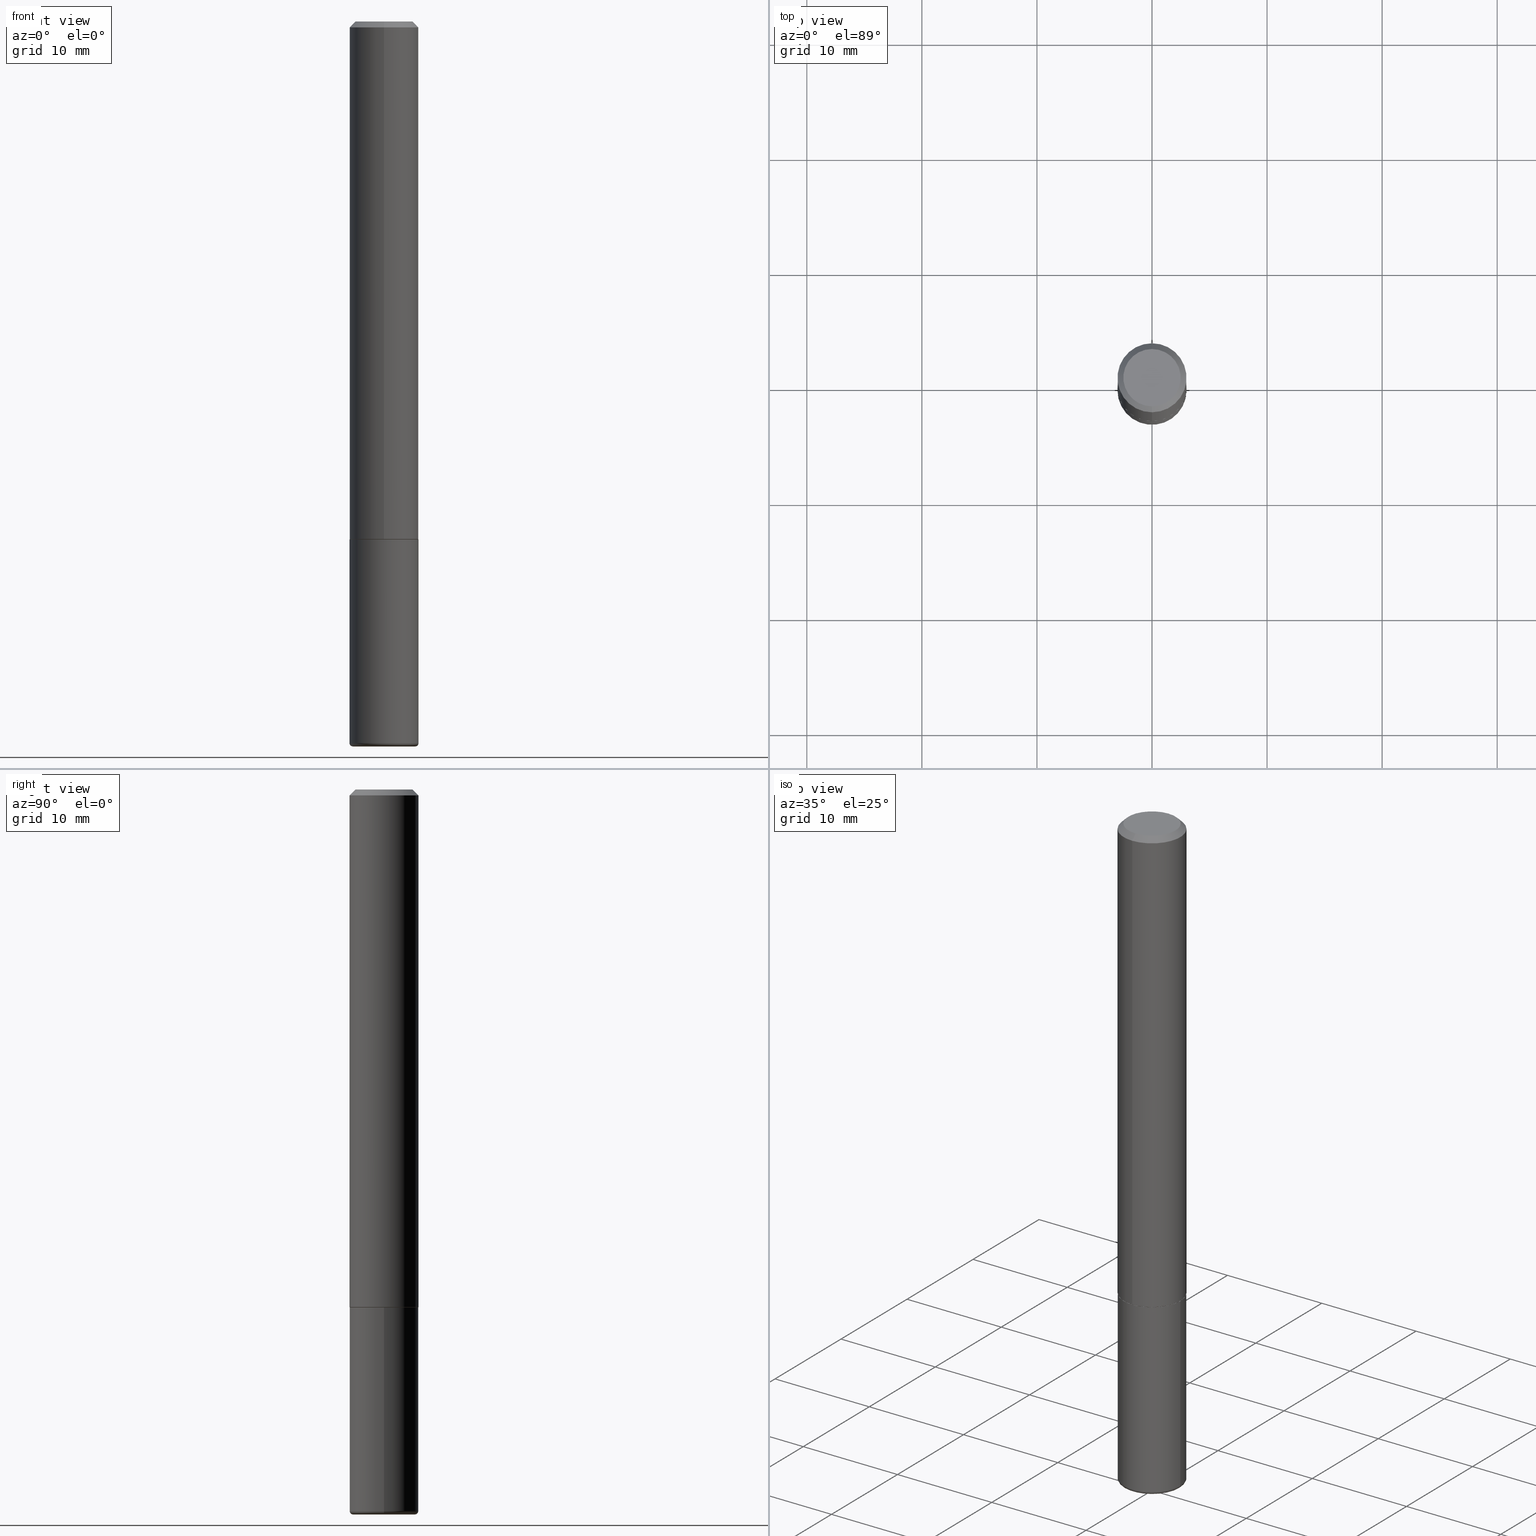
[diagram: canonical four-view strip — front | top / right | iso, engineering-drawing reading convention]
A machine part, canonical four-view strip (front | top / right | iso — engineering-drawing reading convention). The complete STEP part file that produces these views, byte-faithful:
ISO-10303-21;
HEADER;
FILE_DESCRIPTION (( 'STEP AP203' ),
    '1' );
FILE_NAME ('47482.STEP',
    '2024-03-06T01:55:58',
    ( '' ),
    ( '' ),
    'SwSTEP 2.0',
    'SolidWorks 2023',
    '' );
FILE_SCHEMA (( 'CONFIG_CONTROL_DESIGN' ));
ENDSEC;

DATA;
#1 = EDGE_CURVE ( 'NONE', #230, #233, #47, .T. ) ;
#2 = LINE ( 'NONE', #273, #161 ) ;
#3 = COORDINATED_UNIVERSAL_TIME_OFFSET ( 5, 0, .BEHIND. ) ;
#4 = ORIENTED_EDGE ( 'NONE', *, *, #249, .F. ) ;
#5 = VECTOR ( 'NONE', #29, 39.37007874015748143 ) ;
#6 = LOCAL_TIME ( 20, 55, 58.00000000000000000, #300 ) ;
#7 = MANIFOLD_SOLID_BREP ( 'Body-Move/Copy2[2]', #343 ) ;
#8 = EDGE_CURVE ( 'NONE', #31, #77, #2, .T. ) ;
#9 = VERTEX_POINT ( 'NONE', #176 ) ;
#10 = EDGE_LOOP ( 'NONE', ( #99, #74 ) ) ;
#11 = AXIS2_PLACEMENT_3D ( 'NONE', #299, #291, #61 ) ;
#12 = DIRECTION ( 'NONE',  ( -2.443238767566187138E-29, 3.494674881071396916E-15, 1.000000000000000000 ) ) ;
#13 = CARTESIAN_POINT ( 'NONE',  ( -0.1180999999999999966, 8.391509709326782957E-16, -5.809262341591043784E-30 ) ) ;
#14 = FACE_OUTER_BOUND ( 'NONE', #340, .T. ) ;
#15 = DIRECTION ( 'NONE',  ( 1.000000000000000000, -6.982962677686260400E-15, 0.000000000000000000 ) ) ;
#16 = CARTESIAN_POINT ( 'NONE',  ( 4.325998561852691348E-29, -6.187671344425017014E-15, -1.770600000000000174 ) ) ;
#17 = CIRCLE ( 'NONE', #316, 0.1170999999999999958 ) ;
#18 = AXIS2_PLACEMENT_3D ( 'NONE', #354, #149, #407 ) ;
#19 = DIRECTION ( 'NONE',  ( -2.445468806185136877E-29, 3.491481338843145188E-15, 1.000000000000000000 ) ) ;
#20 = FACE_OUTER_BOUND ( 'NONE', #10, .T. ) ;
#21 = CARTESIAN_POINT ( 'NONE',  ( 6.036639748068010694E-29, -8.618721684934306273E-15, -2.468500000000000139 ) ) ;
#22 = DIRECTION ( 'NONE',  ( -2.443238767566187138E-29, 3.494674881071396916E-15, 1.000000000000000000 ) ) ;
#23 = EDGE_LOOP ( 'NONE', ( #276, #328, #40, #400 ) ) ;
#24 = ORIENTED_EDGE ( 'NONE', *, *, #285, .T. ) ;
#25 = AXIS2_PLACEMENT_3D ( 'NONE', #108, #374, #246 ) ;
#26 = AXIS2_PLACEMENT_3D ( 'NONE', #351, #380, #215 ) ;
#27 = APPROVAL_PERSON_ORGANIZATION ( #303, #109, #69 ) ;
#28 = PERSON_AND_ORGANIZATION ( #279, #219 ) ;
#29 = DIRECTION ( 'NONE',  ( -2.445468806185136877E-29, 3.491481338843145188E-15, 1.000000000000000000 ) ) ;
#30 = ADVANCED_FACE ( 'NONE', ( #399 ), #216, .T. ) ;
#31 = VERTEX_POINT ( 'NONE', #214 ) ;
#32 = COORDINATED_UNIVERSAL_TIME_OFFSET ( 5, 0, .BEHIND. ) ;
#33 = LINE ( 'NONE', #238, #5 ) ;
#34 = AXIS2_PLACEMENT_3D ( 'NONE', #186, #95, #120 ) ;
#35 = CALENDAR_DATE ( 2024, 5, 3 ) ;
#36 = EDGE_LOOP ( 'NONE', ( #393, #79, #259, #264 ) ) ;
#37 = CALENDAR_DATE ( 2024, 5, 3 ) ;
#38 = ORIENTED_EDGE ( 'NONE', *, *, #54, .T. ) ;
#39 = DESIGN_CONTEXT ( 'detailed design', #82, 'design' ) ;
#40 = ORIENTED_EDGE ( 'NONE', *, *, #183, .T. ) ;
#41 = AXIS2_PLACEMENT_3D ( 'NONE', #122, #342, #317 ) ;
#42 = EDGE_CURVE ( 'NONE', #294, #271, #52, .T. ) ;
#43 = AXIS2_PLACEMENT_3D ( 'NONE', #384, #152, #319 ) ;
#44 = APPROVAL ( #135, 'UNSPECIFIED' ) ;
#45 = DIRECTION ( 'NONE',  ( 1.000000000000000000, -6.982962677686265133E-15, 0.000000000000000000 ) ) ;
#46 = CARTESIAN_POINT ( 'NONE',  ( 7.548582654578847672E-16, 0.09809999999999975684, -8.213505744438662948E-17 ) ) ;
#47 = CIRCLE ( 'NONE', #292, 0.1180999999999999966 ) ;
#48 = CIRCLE ( 'NONE', #376, 0.1063000000000000056 ) ;
#49 = DIRECTION ( 'NONE',  ( 6.982962677686265922E-15, 1.000000000000000000, -3.494674881071397310E-15 ) ) ;
#50 = LINE ( 'NONE', #13, #84 ) ;
#51 = CARTESIAN_POINT ( 'NONE',  ( -2.836700619046468893E-29, -2.140837380572130496E-14, -2.480300000000000171 ) ) ;
#52 = LINE ( 'NONE', #314, #396 ) ;
#53 = CARTESIAN_POINT ( 'NONE',  ( 8.391509709327014685E-16, 0.1180999999999940708, -1.770600000000000840 ) ) ;
#54 = EDGE_CURVE ( 'NONE', #290, #233, #50, .T. ) ;
#55 = DIRECTION ( 'NONE',  ( -2.443238767566187138E-29, 3.494674881071397310E-15, 1.000000000000000000 ) ) ;
#56 = DIRECTION ( 'NONE',  ( 2.438088387897960049E-29, -3.491481338843145188E-15, -1.000000000000000000 ) ) ;
#57 = DIRECTION ( 'NONE',  ( -2.443238767566187138E-29, 3.494674881071396916E-15, 1.000000000000000000 ) ) ;
#58 = CARTESIAN_POINT ( 'NONE',  ( 6.065496279980995876E-29, -8.659921164732656913E-15, -2.480300000000001059 ) ) ;
#59 = APPLICATION_CONTEXT ( 'configuration controlled 3d designs of mechanical parts and assemblies' ) ;
#60 = ORIENTED_EDGE ( 'NONE', *, *, #373, .T. ) ;
#61 = DIRECTION ( 'NONE',  ( -6.982962677686265922E-15, -1.000000000000000000, 2.332918867347791121E-15 ) ) ;
#62 =( NAMED_UNIT ( * ) SI_UNIT ( $, .STERADIAN. ) SOLID_ANGLE_UNIT ( ) );
#63 = ORIENTED_EDGE ( 'NONE', *, *, #269, .F. ) ;
#64 = VECTOR ( 'NONE', #408, 39.37007874015748143 ) ;
#65 = DIRECTION ( 'NONE',  ( 1.000000000000000000, -6.982962677686266711E-15, 4.876176775795936353E-29 ) ) ;
#66 = LOCAL_TIME ( 20, 55, 58.00000000000000000, #32 ) ;
#67 = PERSON_AND_ORGANIZATION_ROLE ( 'design_supplier' ) ;
#68 = DIRECTION ( 'NONE',  ( -2.445468806185136597E-29, 3.491481338843145583E-15, 1.000000000000000000 ) ) ;
#69 = APPROVAL_ROLE ( '' ) ;
#70 = CYLINDRICAL_SURFACE ( 'NONE', #218, 0.1180999999999999966 ) ;
#71 = VERTEX_POINT ( 'NONE', #177 ) ;
#72 = DATE_AND_TIME ( #35, #344 ) ;
#73 = VECTOR ( 'NONE', #155, 39.37007874015748143 ) ;
#74 = ORIENTED_EDGE ( 'NONE', *, *, #254, .T. ) ;
#75 = APPLICATION_PROTOCOL_DEFINITION ( 'international standard', 'config_control_design', 1994, #59 ) ;
#76 = ADVANCED_FACE ( 'NONE', ( #148 ), #179, .T. ) ;
#77 = VERTEX_POINT ( 'NONE', #406 ) ;
#78 = ADVANCED_FACE ( 'NONE', ( #277 ), #235, .T. ) ;
#79 = ORIENTED_EDGE ( 'NONE', *, *, #409, .T. ) ;
#80 = CIRCLE ( 'NONE', #390, 0.1181000000000002326 ) ;
#81 = CC_DESIGN_APPROVAL ( #416, ( #335 ) ) ;
#82 = APPLICATION_CONTEXT ( 'configuration controlled 3d designs of mechanical parts and assemblies' ) ;
#83 = DIRECTION ( 'NONE',  ( 2.443238767566186578E-29, -3.494674881071397310E-15, -1.000000000000000000 ) ) ;
#84 = VECTOR ( 'NONE', #19, 39.37007874015748143 ) ;
#85 = DIRECTION ( 'NONE',  ( -1.000000000000000000, 7.105427357601042879E-15, 0.000000000000000000 ) ) ;
#86 = UNCERTAINTY_MEASURE_WITH_UNIT (LENGTH_MEASURE( 1.000000000000000082E-05 ), #394, 'distance_accuracy_value', 'NONE');
#87 = AXIS2_PLACEMENT_3D ( 'NONE', #345, #378, #382 ) ;
#88 = CC_DESIGN_DATE_AND_TIME_ASSIGNMENT ( #337, #172, ( #281 ) ) ;
#89 = DIRECTION ( 'NONE',  ( 7.105427357601001859E-15, 1.000000000000000000, -3.491481338843145583E-15 ) ) ;
#90 = DIRECTION ( 'NONE',  ( 1.000000000000000000, -6.982962677686265133E-15, 0.000000000000000000 ) ) ;
#91 = FACE_OUTER_BOUND ( 'NONE', #134, .T. ) ;
#92 = CARTESIAN_POINT ( 'NONE',  ( 0.000000000000000000, 0.000000000000000000, 0.000000000000000000 ) ) ;
#93 = CC_DESIGN_DATE_AND_TIME_ASSIGNMENT ( #295, #98, ( #335 ) ) ;
#94 = CARTESIAN_POINT ( 'NONE',  ( 8.246878922347484598E-16, 0.1180999999999999273, -0.02000000000000045838 ) ) ;
#95 = DIRECTION ( 'NONE',  ( -2.443238767566187138E-29, 3.494674881071396916E-15, 1.000000000000000000 ) ) ;
#96 = PERSON_AND_ORGANIZATION ( #279, #219 ) ;
#97 = VERTEX_POINT ( 'NONE', #46 ) ;
#98 = DATE_TIME_ROLE ( 'classification_date' ) ;
#99 = ORIENTED_EDGE ( 'NONE', *, *, #1, .T. ) ;
#100 = CIRCLE ( 'NONE', #151, 0.1180999999999999966 ) ;
#101 = CONICAL_SURFACE ( 'NONE', #136, 0.1170999999999999958, 0.7853981633975336552 ) ;
#102 = APPROVAL_DATE_TIME ( #263, #44 ) ;
#103 = EDGE_LOOP ( 'NONE', ( #212, #339 ) ) ;
#104 = ORIENTED_EDGE ( 'NONE', *, *, #311, .T. ) ;
#105 = APPROVAL_DATE_TIME ( #395, #416 ) ;
#106 = ORIENTED_EDGE ( 'NONE', *, *, #107, .F. ) ;
#107 = EDGE_CURVE ( 'NONE', #309, #290, #100, .T. ) ;
#108 = CARTESIAN_POINT ( 'NONE',  ( 4.886477535132384121E-31, -6.989349762142808870E-17, -0.02000000000000004205 ) ) ;
#109 = APPROVAL ( #362, 'UNSPECIFIED' ) ;
#110 = ORIENTED_EDGE ( 'NONE', *, *, #221, .F. ) ;
#111 = CIRCLE ( 'NONE', #267, 0.1180999999999999966 ) ;
#112 = CC_DESIGN_SECURITY_CLASSIFICATION ( #335, ( #302 ) ) ;
#113 = LINE ( 'NONE', #217, #127 ) ;
#114 = ORIENTED_EDGE ( 'NONE', *, *, #107, .T. ) ;
#115 = CC_DESIGN_PERSON_AND_ORGANIZATION_ASSIGNMENT ( #325, #359, ( #281 ) ) ;
#116 = CARTESIAN_POINT ( 'NONE',  ( 6.036639748068010694E-29, -8.618721684934306273E-15, -2.468500000000000139 ) ) ;
#117 = DIRECTION ( 'NONE',  ( 2.443238767566187138E-29, -3.494674881071396916E-15, -1.000000000000000000 ) ) ;
#118 = CIRCLE ( 'NONE', #34, 0.1180999999999999966 ) ;
#119 = DIRECTION ( 'NONE',  ( -2.445468806185136597E-29, 3.491481338843145583E-15, 1.000000000000000000 ) ) ;
#120 = DIRECTION ( 'NONE',  ( -6.982962677686265922E-15, -1.000000000000000000, 3.505890868245046092E-15 ) ) ;
#121 = EDGE_CURVE ( 'NONE', #290, #309, #375, .T. ) ;
#122 = CARTESIAN_POINT ( 'NONE',  ( 6.036639748068010694E-29, -8.618721684934306273E-15, -2.468500000000000139 ) ) ;
#123 = DIRECTION ( 'NONE',  ( -1.000000000000000000, 6.982962677686265922E-15, -4.876176775795935793E-29 ) ) ;
#124 = DIRECTION ( 'NONE',  ( 5.024295867788490741E-15, 0.7071067811866103003, 0.7071067811864847341 ) ) ;
#125 = FACE_OUTER_BOUND ( 'NONE', #349, .T. ) ;
#126 = ORIENTED_EDGE ( 'NONE', *, *, #221, .T. ) ;
#127 = VECTOR ( 'NONE', #55, 39.37007874015748143 ) ;
#128 = FACE_OUTER_BOUND ( 'NONE', #144, .T. ) ;
#129 = ORIENTED_EDGE ( 'NONE', *, *, #42, .T. ) ;
#130 = DIRECTION ( 'NONE',  ( -6.982962677686265922E-15, -1.000000000000000000, 2.332918867347791121E-15 ) ) ;
#131 = APPROVAL_ROLE ( '' ) ;
#132 = CC_DESIGN_PERSON_AND_ORGANIZATION_ASSIGNMENT ( #140, #203, ( #302 ) ) ;
#133 = ORIENTED_EDGE ( 'NONE', *, *, #1, .F. ) ;
#134 = EDGE_LOOP ( 'NONE', ( #167, #296, #228, #240 ) ) ;
#135 = APPROVAL_STATUS ( 'not_yet_approved' ) ;
#136 = AXIS2_PLACEMENT_3D ( 'NONE', #350, #227, #130 ) ;
#137 = PERSON_AND_ORGANIZATION_ROLE ( 'design_owner' ) ;
#138 = ORIENTED_EDGE ( 'NONE', *, *, #204, .F. ) ;
#139 = COORDINATED_UNIVERSAL_TIME_OFFSET ( 5, 0, .BEHIND. ) ;
#140 = PERSON_AND_ORGANIZATION ( #279, #219 ) ;
#141 = CIRCLE ( 'NONE', #379, 0.09809999999999975684 ) ;
#142 = CC_DESIGN_APPROVAL ( #44, ( #302 ) ) ;
#143 = EDGE_LOOP ( 'NONE', ( #114, #38, #133, #63 ) ) ;
#144 = EDGE_LOOP ( 'NONE', ( #297, #166, #368, #159 ) ) ;
#145 = EDGE_CURVE ( 'NONE', #356, #294, #17, .T. ) ;
#146 = AXIS2_PLACEMENT_3D ( 'NONE', #313, #119, #410 ) ;
#147 = DIRECTION ( 'NONE',  ( -4.937700262164969294E-15, -0.7071067811866054154, 0.7071067811864896191 ) ) ;
#148 = FACE_OUTER_BOUND ( 'NONE', #260, .T. ) ;
#149 = DIRECTION ( 'NONE',  ( -6.982962677686266711E-15, -1.000000000000000000, 3.491481338843145583E-15 ) ) ;
#150 = FACE_OUTER_BOUND ( 'NONE', #247, .T. ) ;
#151 = AXIS2_PLACEMENT_3D ( 'NONE', #116, #256, #90 ) ;
#152 = DIRECTION ( 'NONE',  ( -2.443238767566187138E-29, 3.494674881071396916E-15, 1.000000000000000000 ) ) ;
#153 = TOROIDAL_SURFACE ( 'NONE', #146, 0.1063000000000000056, 0.01180000000000033626 ) ;
#154 = DIRECTION ( 'NONE',  ( -2.443238767566187138E-29, 3.494674881071396916E-15, 1.000000000000000000 ) ) ;
#155 = DIRECTION ( 'NONE',  ( 4.937700262164540942E-15, 0.7071067811865441310, -0.7071067811865509034 ) ) ;
#156 = LINE ( 'NONE', #288, #211 ) ;
#157 = DIRECTION ( 'NONE',  ( 1.000000000000000000, -6.982962677686260400E-15, 0.000000000000000000 ) ) ;
#158 = EDGE_CURVE ( 'NONE', #71, #365, #185, .T. ) ;
#159 = ORIENTED_EDGE ( 'NONE', *, *, #254, .F. ) ;
#160 =( LENGTH_UNIT ( ) NAMED_UNIT ( * ) SI_UNIT ( $, .METRE. ) );
#161 = VECTOR ( 'NONE', #274, 39.37007874015748143 ) ;
#162 = AXIS2_PLACEMENT_3D ( 'NONE', #353, #56, #189 ) ;
#163 = CARTESIAN_POINT ( 'NONE',  ( -8.177049295570184665E-16, -0.1171000000000061991, -1.771600000000000064 ) ) ;
#164 = CC_DESIGN_PERSON_AND_ORGANIZATION_ASSIGNMENT ( #96, #67, ( #302 ) ) ;
#165 = PERSON_AND_ORGANIZATION ( #279, #219 ) ;
#166 = ORIENTED_EDGE ( 'NONE', *, *, #121, .T. ) ;
#167 = ORIENTED_EDGE ( 'NONE', *, *, #324, .F. ) ;
#168 = PERSON_AND_ORGANIZATION ( #279, #219 ) ;
#169 = CC_DESIGN_PERSON_AND_ORGANIZATION_ASSIGNMENT ( #28, #232, ( #335 ) ) ;
#170 = AXIS2_PLACEMENT_3D ( 'NONE', #173, #241, #331 ) ;
#171 = APPROVAL_PERSON_ORGANIZATION ( #199, #416, #327 ) ;
#172 = DATE_TIME_ROLE ( 'creation_date' ) ;
#173 = CARTESIAN_POINT ( 'NONE',  ( 0.000000000000000000, 0.000000000000000000, 0.000000000000000000 ) ) ;
#174 = EDGE_LOOP ( 'NONE', ( #306, #4, #244, #60 ) ) ;
#175 = ORIENTED_EDGE ( 'NONE', *, *, #145, .T. ) ;
#176 = CARTESIAN_POINT ( 'NONE',  ( 8.246878922347484598E-16, 0.1180999999999999273, -0.02000000000000045838 ) ) ;
#177 = CARTESIAN_POINT ( 'NONE',  ( 0.1063000000000000056, -9.402210097370707052E-15, -2.480300000000001059 ) ) ;
#178 = AXIS2_PLACEMENT_3D ( 'NONE', #188, #83, #49 ) ;
#179 = CYLINDRICAL_SURFACE ( 'NONE', #389, 0.1181000000000001215 ) ;
#180 = DIRECTION ( 'NONE',  ( 6.982962677686265922E-15, 1.000000000000000000, -3.505890868245046092E-15 ) ) ;
#181 = PRODUCT_DEFINITION_SHAPE ( 'NONE', 'NONE',  #281 ) ;
#182 = DIRECTION ( 'NONE',  ( -2.445468806185136597E-29, 3.491481338843145583E-15, 1.000000000000000000 ) ) ;
#183 = EDGE_CURVE ( 'NONE', #77, #9, #196, .T. ) ;
#184 = CARTESIAN_POINT ( 'NONE',  ( 6.065496279980995876E-29, -8.659921164732656913E-15, -2.480300000000001059 ) ) ;
#185 = CIRCLE ( 'NONE', #272, 0.1063000000000000056 ) ;
#186 = CARTESIAN_POINT ( 'NONE',  ( 4.886477535132384121E-31, -6.989349762142808870E-17, -0.02000000000000004205 ) ) ;
#187 = LOCAL_TIME ( 20, 55, 58.00000000000000000, #333 ) ;
#188 = CARTESIAN_POINT ( 'NONE',  ( 6.850286386810209760E-16, 0.09809999999999975684, -2.124813316387448711E-16 ) ) ;
#189 = DIRECTION ( 'NONE',  ( -1.000000000000000000, 6.982962677686265922E-15, -4.876176775795935793E-29 ) ) ;
#190 = ADVANCED_FACE ( 'NONE', ( #401 ), #153, .T. ) ;
#191 = CARTESIAN_POINT ( 'NONE',  ( 4.332392537037588763E-29, -6.185508339894517569E-15, -1.771600000000000286 ) ) ;
#192 = ORIENTED_EDGE ( 'NONE', *, *, #158, .F. ) ;
#193 = DIRECTION ( 'NONE',  ( -6.982962677686265922E-15, -1.000000000000000000, 3.494674881071397705E-15 ) ) ;
#194 = ORIENTED_EDGE ( 'NONE', *, *, #311, .F. ) ;
#195 = APPLICATION_PROTOCOL_DEFINITION ( 'international standard', 'config_control_design', 1994, #82 ) ;
#196 = CIRCLE ( 'NONE', #26, 0.1180999999999999966 ) ;
#197 = ORIENTED_EDGE ( 'NONE', *, *, #42, .F. ) ;
#198 = CARTESIAN_POINT ( 'NONE',  ( -0.1180999999999999966, -6.562964041481733724E-15, -1.771600000000000286 ) ) ;
#199 = PERSON_AND_ORGANIZATION ( #279, #219 ) ;
#200 = ORIENTED_EDGE ( 'NONE', *, *, #213, .F. ) ;
#201 = FACE_OUTER_BOUND ( 'NONE', #143, .T. ) ;
#202 = ORIENTED_EDGE ( 'NONE', *, *, #324, .T. ) ;
#203 = PERSON_AND_ORGANIZATION_ROLE ( 'creator' ) ;
#204 = EDGE_CURVE ( 'NONE', #271, #77, #113, .T. ) ;
#205 = DIRECTION ( 'NONE',  ( -2.445468806185136597E-29, 3.491481338843145583E-15, 1.000000000000000000 ) ) ;
#206 = CIRCLE ( 'NONE', #11, 0.1170999999999999958 ) ;
#207 = CALENDAR_DATE ( 2024, 5, 3 ) ;
#208 = ADVANCED_FACE ( 'NONE', ( #150 ), #248, .F. ) ;
#209 = ADVANCED_FACE ( 'NONE', ( #224 ), #222, .F. ) ;
#210 = AXIS2_PLACEMENT_3D ( 'NONE', #21, #255, #251 ) ;
#211 = VECTOR ( 'NONE', #124, 39.37007874015748143 ) ;
#212 = ORIENTED_EDGE ( 'NONE', *, *, #249, .T. ) ;
#213 = EDGE_CURVE ( 'NONE', #330, #271, #80, .T. ) ;
#214 = CARTESIAN_POINT ( 'NONE',  ( -7.416198335591014190E-16, -0.09809999999999975684, 6.035201542218197439E-16 ) ) ;
#215 = DIRECTION ( 'NONE',  ( -6.982962677686265922E-15, -1.000000000000000000, 3.505890868245046092E-15 ) ) ;
#216 = CONICAL_SURFACE ( 'NONE', #25, 0.1180999999999999966, 0.7853981633974469467 ) ;
#217 = CARTESIAN_POINT ( 'NONE',  ( -8.246878922347488542E-16, -0.1181000000000001215, 4.127211034545323724E-16 ) ) ;
#218 = AXIS2_PLACEMENT_3D ( 'NONE', #329, #205, #332 ) ;
#219 = ORGANIZATION ( 'UNSPECIFIED', 'UNSPECIFIED', '' ) ;
#220 = CARTESIAN_POINT ( 'NONE',  ( -0.1063000000000000056, -7.863414756821319342E-15, -2.468500000000000139 ) ) ;
#221 = EDGE_CURVE ( 'NONE', #356, #330, #156, .T. ) ;
#222 = PLANE ( 'NONE',  #178 ) ;
#223 = PLANE ( 'NONE',  #370 ) ;
#224 = FACE_OUTER_BOUND ( 'NONE', #103, .T. ) ;
#225 = CYLINDRICAL_SURFACE ( 'NONE', #242, 0.1181000000000001215 ) ;
#226 = DIRECTION ( 'NONE',  ( -6.982962677686265922E-15, -1.000000000000000000, 2.332918867347791121E-15 ) ) ;
#227 = DIRECTION ( 'NONE',  ( -2.443238767566187138E-29, 3.494674881071396916E-15, 1.000000000000000000 ) ) ;
#228 = ORIENTED_EDGE ( 'NONE', *, *, #204, .T. ) ;
#229 = DIRECTION ( 'NONE',  ( -6.982962677686265922E-15, -1.000000000000000000, 4.626330217890360659E-15 ) ) ;
#230 = VERTEX_POINT ( 'NONE', #377 ) ;
#231 = CARTESIAN_POINT ( 'NONE',  ( 0.000000000000000000, 0.000000000000000000, 0.000000000000000000 ) ) ;
#232 = PERSON_AND_ORGANIZATION_ROLE ( 'classification_officer' ) ;
#233 = VERTEX_POINT ( 'NONE', #198 ) ;
#234 = DIRECTION ( 'NONE',  ( -6.982962677686265922E-15, -1.000000000000000000, 3.494674881071397705E-15 ) ) ;
#235 = TOROIDAL_SURFACE ( 'NONE', #41, 0.1063000000000000056, 0.01180000000000033626 ) ;
#236 = ORIENTED_EDGE ( 'NONE', *, *, #158, .T. ) ;
#237 = CC_DESIGN_APPROVAL ( #109, ( #281 ) ) ;
#238 = CARTESIAN_POINT ( 'NONE',  ( 0.1180999999999999966, -8.246878922347480654E-16, 5.758764772215000440E-30 ) ) ;
#239 = APPROVAL_DATE_TIME ( #72, #109 ) ;
#240 = ORIENTED_EDGE ( 'NONE', *, *, #373, .F. ) ;
#241 = DIRECTION ( 'NONE',  ( 0.000000000000000000, 0.000000000000000000, 1.000000000000000000 ) ) ;
#242 = AXIS2_PLACEMENT_3D ( 'NONE', #402, #257, #381 ) ;
#243 = CC_DESIGN_PERSON_AND_ORGANIZATION_ASSIGNMENT ( #168, #137, ( #383 ) ) ;
#244 = ORIENTED_EDGE ( 'NONE', *, *, #361, .T. ) ;
#245 = ORIENTED_EDGE ( 'NONE', *, *, #355, .T. ) ;
#246 = DIRECTION ( 'NONE',  ( 6.982962677686265922E-15, 1.000000000000000000, -3.505890868245046092E-15 ) ) ;
#247 = EDGE_LOOP ( 'NONE', ( #326, #322 ) ) ;
#248 = PLANE ( 'NONE',  #87 ) ;
#249 = EDGE_CURVE ( 'NONE', #97, #31, #141, .T. ) ;
#250 = CARTESIAN_POINT ( 'NONE',  ( 4.886477535132384121E-31, -6.989349762142808870E-17, -0.02000000000000004205 ) ) ;
#251 = DIRECTION ( 'NONE',  ( 1.000000000000000000, -6.982962677686265133E-15, 0.000000000000000000 ) ) ;
#252 = CIRCLE ( 'NONE', #404, 0.1181000000000002326 ) ;
#253 = LINE ( 'NONE', #284, #64 ) ;
#254 = EDGE_CURVE ( 'NONE', #233, #230, #111, .T. ) ;
#255 = DIRECTION ( 'NONE',  ( -2.445468806185136597E-29, 3.491481338843145583E-15, 1.000000000000000000 ) ) ;
#256 = DIRECTION ( 'NONE',  ( -2.445468806185136597E-29, 3.491481338843145583E-15, 1.000000000000000000 ) ) ;
#257 = DIRECTION ( 'NONE',  ( -2.443238767566187138E-29, 3.494674881071396916E-15, 1.000000000000000000 ) ) ;
#258 = LINE ( 'NONE', #94, #73 ) ;
#259 = ORIENTED_EDGE ( 'NONE', *, *, #367, .T. ) ;
#260 = EDGE_LOOP ( 'NONE', ( #104, #202, #310, #138 ) ) ;
#261 = LENGTH_MEASURE_WITH_UNIT ( LENGTH_MEASURE( 0.02539999999999999897 ), #160 );
#262 = EDGE_LOOP ( 'NONE', ( #24, #126, #194, #197 ) ) ;
#263 = DATE_AND_TIME ( #37, #6 ) ;
#264 = ORIENTED_EDGE ( 'NONE', *, *, #121, .F. ) ;
#265 = ADVANCED_FACE ( 'NONE', ( #201 ), #392, .T. ) ;
#266 = CARTESIAN_POINT ( 'NONE',  ( -6.369341406389364514E-45, 9.110357005365375257E-31, 2.606925483887165818E-16 ) ) ;
#267 = AXIS2_PLACEMENT_3D ( 'NONE', #191, #68, #357 ) ;
#268 = APPROVAL_STATUS ( 'not_yet_approved' ) ;
#269 = EDGE_CURVE ( 'NONE', #309, #230, #33, .T. ) ;
#270 = CALENDAR_DATE ( 2024, 5, 3 ) ;
#271 = VERTEX_POINT ( 'NONE', #360 ) ;
#272 = AXIS2_PLACEMENT_3D ( 'NONE', #184, #182, #15 ) ;
#273 = CARTESIAN_POINT ( 'NONE',  ( -8.102248135368172434E-16, -0.1181000000000000660, -0.01999999999999962919 ) ) ;
#274 = DIRECTION ( 'NONE',  ( -4.851104656540957175E-15, -0.7071067811865490160, -0.7071067811865460184 ) ) ;
#275 = LOCAL_TIME ( 20, 55, 58.00000000000000000, #139 ) ;
#276 = ORIENTED_EDGE ( 'NONE', *, *, #415, .F. ) ;
#277 = FACE_OUTER_BOUND ( 'NONE', #36, .T. ) ;
#278 = ADVANCED_FACE ( 'NONE', ( #128 ), #70, .T. ) ;
#279 = PERSON ( 'UNSPECIFIED', 'UNSPECIFIED', 'UNSPECIFIED', ('UNSPECIFIED'), ('UNSPECIFIED'), ('UNSPECIFIED') ) ;
#280 = DIRECTION ( 'NONE',  ( -6.982962677686265922E-15, -1.000000000000000000, 3.494674881071396522E-15 ) ) ;
#281 = PRODUCT_DEFINITION ( 'UNKNOWN', '', #302, #39 ) ;
#282 = DIRECTION ( 'NONE',  ( 2.438088387897960049E-29, -3.491481338843145188E-15, -1.000000000000000000 ) ) ;
#283 = CIRCLE ( 'NONE', #18, 0.01180000000000033626 ) ;
#284 = CARTESIAN_POINT ( 'NONE',  ( 8.391509709326790846E-16, 0.1181000000000001215, -4.127211034545323724E-16 ) ) ;
#285 = EDGE_CURVE ( 'NONE', #294, #356, #206, .T. ) ;
#286 = MANIFOLD_SOLID_BREP ( 'Body-Move/Copy2[1]', #413 ) ;
#287 = PLANE ( 'NONE',  #162 ) ;
#288 = CARTESIAN_POINT ( 'NONE',  ( 8.320455435751204777E-16, 0.1170999999999937924, -1.771600000000000508 ) ) ;
#289 = CARTESIAN_POINT ( 'NONE',  ( -6.369341406389364514E-45, 9.110357005365375257E-31, 2.606925483887165818E-16 ) ) ;
#290 = VERTEX_POINT ( 'NONE', #414 ) ;
#291 = DIRECTION ( 'NONE',  ( -2.443238767566187138E-29, 3.494674881071396916E-15, 1.000000000000000000 ) ) ;
#292 = AXIS2_PLACEMENT_3D ( 'NONE', #336, #371, #45 ) ;
#293 = AXIS2_PLACEMENT_3D ( 'NONE', #289, #387, #193 ) ;
#294 = VERTEX_POINT ( 'NONE', #163 ) ;
#295 = DATE_AND_TIME ( #417, #66 ) ;
#296 = ORIENTED_EDGE ( 'NONE', *, *, #213, .T. ) ;
#297 = ORIENTED_EDGE ( 'NONE', *, *, #54, .F. ) ;
#298 =( NAMED_UNIT ( * ) PLANE_ANGLE_UNIT ( ) SI_UNIT ( $, .RADIAN. ) );
#299 = CARTESIAN_POINT ( 'NONE',  ( 4.328441800620257960E-29, -6.191166019306087880E-15, -1.771600000000000286 ) ) ;
#300 = COORDINATED_UNIVERSAL_TIME_OFFSET ( 5, 0, .BEHIND. ) ;
#301 = AXIS2_PLACEMENT_3D ( 'NONE', #250, #117, #180 ) ;
#302 = PRODUCT_DEFINITION_FORMATION_WITH_SPECIFIED_SOURCE ( 'ANY', '', #383, .NOT_KNOWN. ) ;
#303 = PERSON_AND_ORGANIZATION ( #279, #219 ) ;
#304 = FACE_OUTER_BOUND ( 'NONE', #174, .T. ) ;
#305 = EDGE_LOOP ( 'NONE', ( #236, #245, #106, #323 ) ) ;
#306 = ORIENTED_EDGE ( 'NONE', *, *, #8, .F. ) ;
#307 = CIRCLE ( 'NONE', #318, 0.01180000000000033626 ) ;
#308 = ADVANCED_FACE ( 'NONE', ( #304 ), #358, .T. ) ;
#309 = VERTEX_POINT ( 'NONE', #386 ) ;
#310 = ORIENTED_EDGE ( 'NONE', *, *, #183, .F. ) ;
#311 = EDGE_CURVE ( 'NONE', #271, #330, #252, .T. ) ;
#312 = CONICAL_SURFACE ( 'NONE', #43, 0.1170999999999999958, 0.7853981633975336552 ) ;
#313 = CARTESIAN_POINT ( 'NONE',  ( 6.036639748068010694E-29, -8.618721684934306273E-15, -2.468500000000000139 ) ) ;
#314 = CARTESIAN_POINT ( 'NONE',  ( -8.177049295570184665E-16, -0.1171000000000061991, -1.771600000000000064 ) ) ;
#315 = CARTESIAN_POINT ( 'NONE',  ( -0.1063000000000000056, -7.842092475310649423E-15, -2.480300000000001059 ) ) ;
#316 = AXIS2_PLACEMENT_3D ( 'NONE', #346, #385, #226 ) ;
#317 = DIRECTION ( 'NONE',  ( 1.000000000000000000, -6.982962677686261189E-15, 4.883557194083110659E-29 ) ) ;
#318 = AXIS2_PLACEMENT_3D ( 'NONE', #220, #89, #85 ) ;
#319 = DIRECTION ( 'NONE',  ( -6.982962677686265922E-15, -1.000000000000000000, 2.332918867347791121E-15 ) ) ;
#320 = DIRECTION ( 'NONE',  ( -6.982962677686265922E-15, -1.000000000000000000, 4.626330217890360659E-15 ) ) ;
#321 = DIRECTION ( 'NONE',  ( -2.445468806185136597E-29, 3.491481338843145583E-15, 1.000000000000000000 ) ) ;
#322 = ORIENTED_EDGE ( 'NONE', *, *, #145, .F. ) ;
#323 = ORIENTED_EDGE ( 'NONE', *, *, #367, .F. ) ;
#324 = EDGE_CURVE ( 'NONE', #330, #9, #253, .T. ) ;
#325 = PERSON_AND_ORGANIZATION ( #279, #219 ) ;
#326 = ORIENTED_EDGE ( 'NONE', *, *, #285, .F. ) ;
#327 = APPROVAL_ROLE ( '' ) ;
#328 = ORIENTED_EDGE ( 'NONE', *, *, #8, .T. ) ;
#329 = CARTESIAN_POINT ( 'NONE',  ( 0.000000000000000000, 0.000000000000000000, 0.000000000000000000 ) ) ;
#330 = VERTEX_POINT ( 'NONE', #53 ) ;
#331 = DIRECTION ( 'NONE',  ( 1.000000000000000000, 0.000000000000000000, 0.000000000000000000 ) ) ;
#332 = DIRECTION ( 'NONE',  ( 1.000000000000000000, -6.982962677686266711E-15, 4.876176775795936353E-29 ) ) ;
#333 = COORDINATED_UNIVERSAL_TIME_OFFSET ( 5, 0, .BEHIND. ) ;
#334 = AXIS2_PLACEMENT_3D ( 'NONE', #231, #364, #65 ) ;
#335 = SECURITY_CLASSIFICATION ( '', '', #418 ) ;
#336 = CARTESIAN_POINT ( 'NONE',  ( 4.332392537037588763E-29, -6.185508339894517569E-15, -1.771600000000000286 ) ) ;
#337 = DATE_AND_TIME ( #207, #187 ) ;
#338 = DIMENSIONAL_EXPONENTS ( 1.000000000000000000, 0.000000000000000000, 0.000000000000000000, 0.000000000000000000, 0.000000000000000000, 0.000000000000000000, 0.000000000000000000 ) ;
#339 = ORIENTED_EDGE ( 'NONE', *, *, #415, .T. ) ;
#340 = EDGE_LOOP ( 'NONE', ( #192, #412 ) ) ;
#341 = ADVANCED_FACE ( 'NONE', ( #411 ), #312, .T. ) ;
#342 = DIRECTION ( 'NONE',  ( -2.445468806185136597E-29, 3.491481338843145583E-15, 1.000000000000000000 ) ) ;
#343 = CLOSED_SHELL ( 'NONE', ( #341, #76, #30, #308, #388, #397, #208, #209 ) ) ;
#344 = LOCAL_TIME ( 20, 55, 58.00000000000000000, #3 ) ;
#345 = CARTESIAN_POINT ( 'NONE',  ( 4.328441800620257960E-29, -6.191166019306087880E-15, -1.771600000000000286 ) ) ;
#346 = CARTESIAN_POINT ( 'NONE',  ( 4.328441800620257960E-29, -6.191166019306087880E-15, -1.771600000000000286 ) ) ;
#347 = CARTESIAN_POINT ( 'NONE',  ( 8.355982572539216720E-16, 0.1170999999999937924, -1.771600000000000508 ) ) ;
#348 = CARTESIAN_POINT ( 'NONE',  ( 4.325998561852691348E-29, -6.187671344425017014E-15, -1.770600000000000174 ) ) ;
#349 = EDGE_LOOP ( 'NONE', ( #110, #175, #129, #200 ) ) ;
#350 = CARTESIAN_POINT ( 'NONE',  ( 4.328441800620257960E-29, -6.191166019306087880E-15, -1.771600000000000286 ) ) ;
#351 = CARTESIAN_POINT ( 'NONE',  ( 4.886477535132384121E-31, -6.989349762142808870E-17, -0.02000000000000004205 ) ) ;
#352 = CIRCLE ( 'NONE', #293, 0.09809999999999975684 ) ;
#353 = CARTESIAN_POINT ( 'NONE',  ( 4.332392537037588763E-29, -6.185508339894517569E-15, -1.771600000000000286 ) ) ;
#354 = CARTESIAN_POINT ( 'NONE',  ( 0.1063000000000000056, -9.361010617572356412E-15, -2.468500000000000139 ) ) ;
#355 = EDGE_CURVE ( 'NONE', #365, #290, #307, .T. ) ;
#356 = VERTEX_POINT ( 'NONE', #347 ) ;
#357 = DIRECTION ( 'NONE',  ( 1.000000000000000000, -6.982962677686265133E-15, 0.000000000000000000 ) ) ;
#358 = CONICAL_SURFACE ( 'NONE', #301, 0.1180999999999999966, 0.7853981633974469467 ) ;
#359 = PERSON_AND_ORGANIZATION_ROLE ( 'creator' ) ;
#360 = CARTESIAN_POINT ( 'NONE',  ( -8.246878922347063544E-16, -0.1181000000000064221, -1.770599999999999730 ) ) ;
#361 = EDGE_CURVE ( 'NONE', #97, #9, #258, .T. ) ;
#362 = APPROVAL_STATUS ( 'not_yet_approved' ) ;
#363 = ADVANCED_BREP_SHAPE_REPRESENTATION ( '47482', ( #286, #7, #170 ), #398 ) ;
#364 = DIRECTION ( 'NONE',  ( -2.445468806185136597E-29, 3.491481338843145583E-15, 1.000000000000000000 ) ) ;
#365 = VERTEX_POINT ( 'NONE', #315 ) ;
#366 = MECHANICAL_CONTEXT ( 'NONE', #59, 'mechanical' ) ;
#367 = EDGE_CURVE ( 'NONE', #71, #309, #283, .T. ) ;
#368 = ORIENTED_EDGE ( 'NONE', *, *, #269, .T. ) ;
#369 = SHAPE_DEFINITION_REPRESENTATION ( #181, #363 ) ;
#370 = AXIS2_PLACEMENT_3D ( 'NONE', #51, #282, #123 ) ;
#371 = DIRECTION ( 'NONE',  ( -2.445468806185136597E-29, 3.491481338843145583E-15, 1.000000000000000000 ) ) ;
#372 = ADVANCED_FACE ( 'NONE', ( #14 ), #223, .T. ) ;
#373 = EDGE_CURVE ( 'NONE', #9, #77, #118, .T. ) ;
#374 = DIRECTION ( 'NONE',  ( 2.443238767566187138E-29, -3.494674881071396916E-15, -1.000000000000000000 ) ) ;
#375 = CIRCLE ( 'NONE', #210, 0.1180999999999999966 ) ;
#376 = AXIS2_PLACEMENT_3D ( 'NONE', #58, #321, #157 ) ;
#377 = CARTESIAN_POINT ( 'NONE',  ( 0.1180999999999999966, -7.010196232129265043E-15, -1.771600000000000286 ) ) ;
#378 = DIRECTION ( 'NONE',  ( -2.443238767566186578E-29, 3.494674881071397310E-15, 1.000000000000000000 ) ) ;
#379 = AXIS2_PLACEMENT_3D ( 'NONE', #266, #57, #234 ) ;
#380 = DIRECTION ( 'NONE',  ( -2.443238767566187138E-29, 3.494674881071396916E-15, 1.000000000000000000 ) ) ;
#381 = DIRECTION ( 'NONE',  ( -6.982962677686265922E-15, -1.000000000000000000, 3.494674881071396522E-15 ) ) ;
#382 = DIRECTION ( 'NONE',  ( -6.982962677686265922E-15, -1.000000000000000000, 3.494674881071397310E-15 ) ) ;
#383 = PRODUCT ( '47482', '47482', '', ( #366 ) ) ;
#384 = CARTESIAN_POINT ( 'NONE',  ( 4.328441800620257960E-29, -6.191166019306087880E-15, -1.771600000000000286 ) ) ;
#385 = DIRECTION ( 'NONE',  ( -2.443238767566187138E-29, 3.494674881071396916E-15, 1.000000000000000000 ) ) ;
#386 = CARTESIAN_POINT ( 'NONE',  ( 0.1181000000000001632, -9.443409577169056114E-15, -2.468500000000000139 ) ) ;
#387 = DIRECTION ( 'NONE',  ( -2.443238767566187138E-29, 3.494674881071396916E-15, 1.000000000000000000 ) ) ;
#388 = ADVANCED_FACE ( 'NONE', ( #91 ), #225, .T. ) ;
#389 = AXIS2_PLACEMENT_3D ( 'NONE', #92, #12, #280 ) ;
#390 = AXIS2_PLACEMENT_3D ( 'NONE', #348, #154, #320 ) ;
#391 = PRODUCT_RELATED_PRODUCT_CATEGORY ( 'detail', '', ( #383 ) ) ;
#392 = CYLINDRICAL_SURFACE ( 'NONE', #334, 0.1180999999999999966 ) ;
#393 = ORIENTED_EDGE ( 'NONE', *, *, #355, .F. ) ;
#394 =( CONVERSION_BASED_UNIT ( 'INCH', #261 ) LENGTH_UNIT ( ) NAMED_UNIT ( #338 ) );
#395 = DATE_AND_TIME ( #270, #275 ) ;
#396 = VECTOR ( 'NONE', #147, 39.37007874015748143 ) ;
#397 = ADVANCED_FACE ( 'NONE', ( #125 ), #101, .T. ) ;
#398 =( GEOMETRIC_REPRESENTATION_CONTEXT ( 3 ) GLOBAL_UNCERTAINTY_ASSIGNED_CONTEXT ( ( #86 ) ) GLOBAL_UNIT_ASSIGNED_CONTEXT ( ( #394, #298, #62 ) ) REPRESENTATION_CONTEXT ( 'NONE', 'WORKASPACE' ) );
#399 = FACE_OUTER_BOUND ( 'NONE', #23, .T. ) ;
#400 = ORIENTED_EDGE ( 'NONE', *, *, #361, .F. ) ;
#401 = FACE_OUTER_BOUND ( 'NONE', #305, .T. ) ;
#402 = CARTESIAN_POINT ( 'NONE',  ( 0.000000000000000000, 0.000000000000000000, 0.000000000000000000 ) ) ;
#403 = ADVANCED_FACE ( 'NONE', ( #20 ), #287, .F. ) ;
#404 = AXIS2_PLACEMENT_3D ( 'NONE', #16, #22, #229 ) ;
#405 = APPROVAL_PERSON_ORGANIZATION ( #165, #44, #131 ) ;
#406 = CARTESIAN_POINT ( 'NONE',  ( -8.102248135368172434E-16, -0.1181000000000000660, -0.01999999999999962919 ) ) ;
#407 = DIRECTION ( 'NONE',  ( 1.000000000000000000, -6.982962677686347963E-15, 0.000000000000000000 ) ) ;
#408 = DIRECTION ( 'NONE',  ( -2.443238767566187138E-29, 3.494674881071397310E-15, 1.000000000000000000 ) ) ;
#409 = EDGE_CURVE ( 'NONE', #365, #71, #48, .T. ) ;
#410 = DIRECTION ( 'NONE',  ( 1.000000000000000000, -6.982962677686261189E-15, 4.883557194083110659E-29 ) ) ;
#411 = FACE_OUTER_BOUND ( 'NONE', #262, .T. ) ;
#412 = ORIENTED_EDGE ( 'NONE', *, *, #409, .F. ) ;
#413 = CLOSED_SHELL ( 'NONE', ( #265, #190, #403, #278, #78, #372 ) ) ;
#414 = CARTESIAN_POINT ( 'NONE',  ( -0.1181000000000001632, -7.779570714001625710E-15, -2.468500000000000139 ) ) ;
#415 = EDGE_CURVE ( 'NONE', #31, #97, #352, .T. ) ;
#416 = APPROVAL ( #268, 'UNSPECIFIED' ) ;
#417 = CALENDAR_DATE ( 2024, 5, 3 ) ;
#418 = SECURITY_CLASSIFICATION_LEVEL ( 'unclassified' ) ;
ENDSEC;
END-ISO-10303-21;
